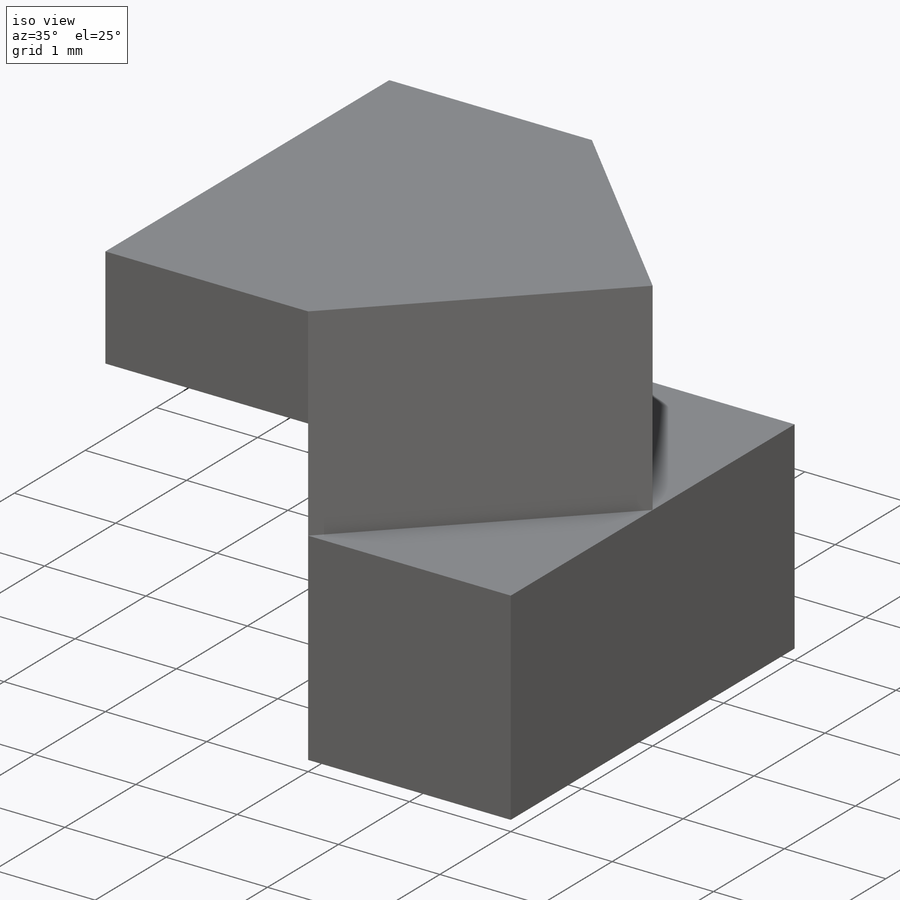
[diagram: iso view]
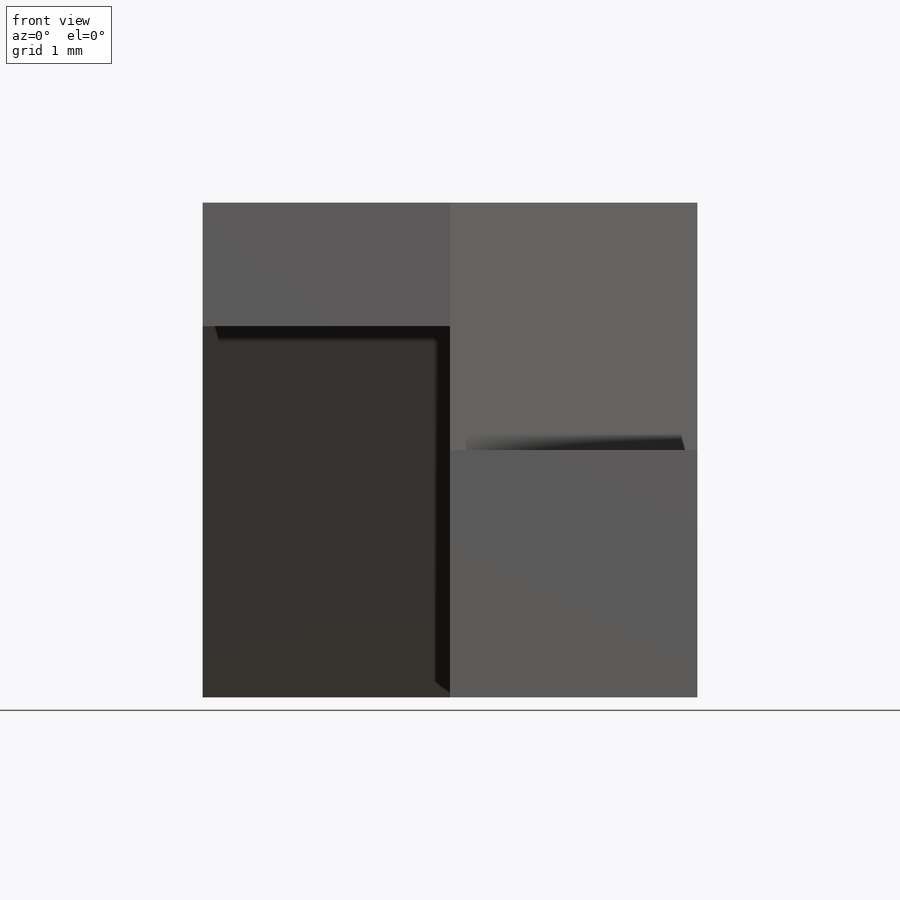
[diagram: front view]
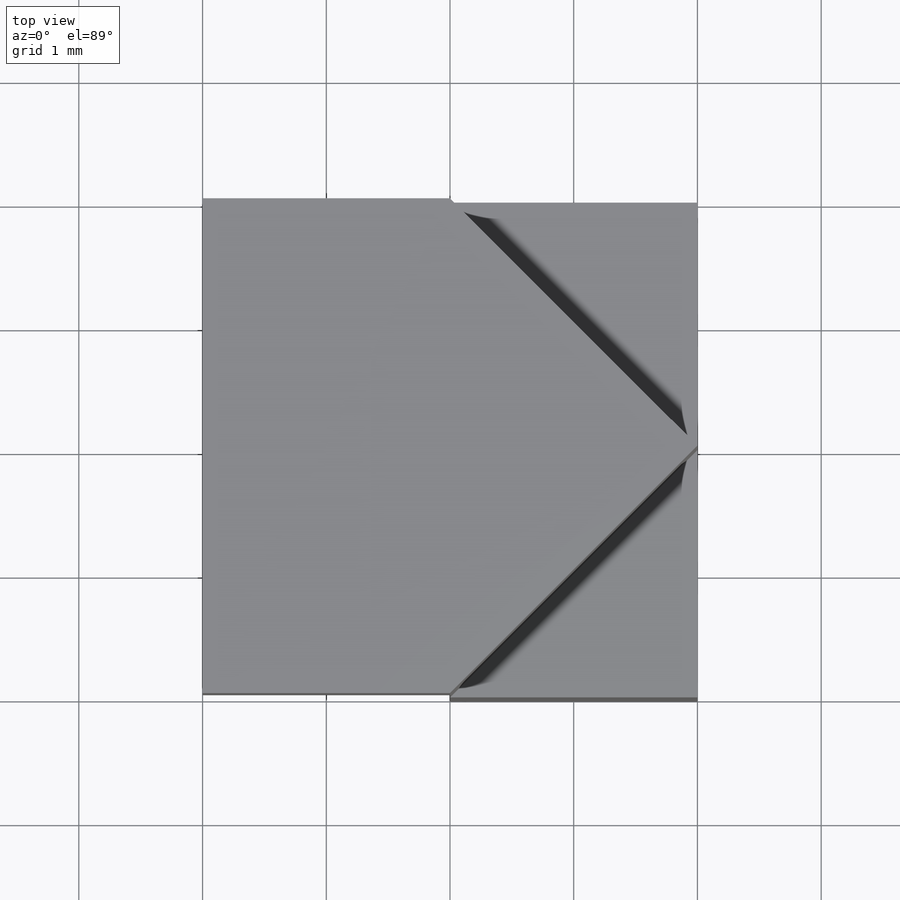
[diagram: top view]
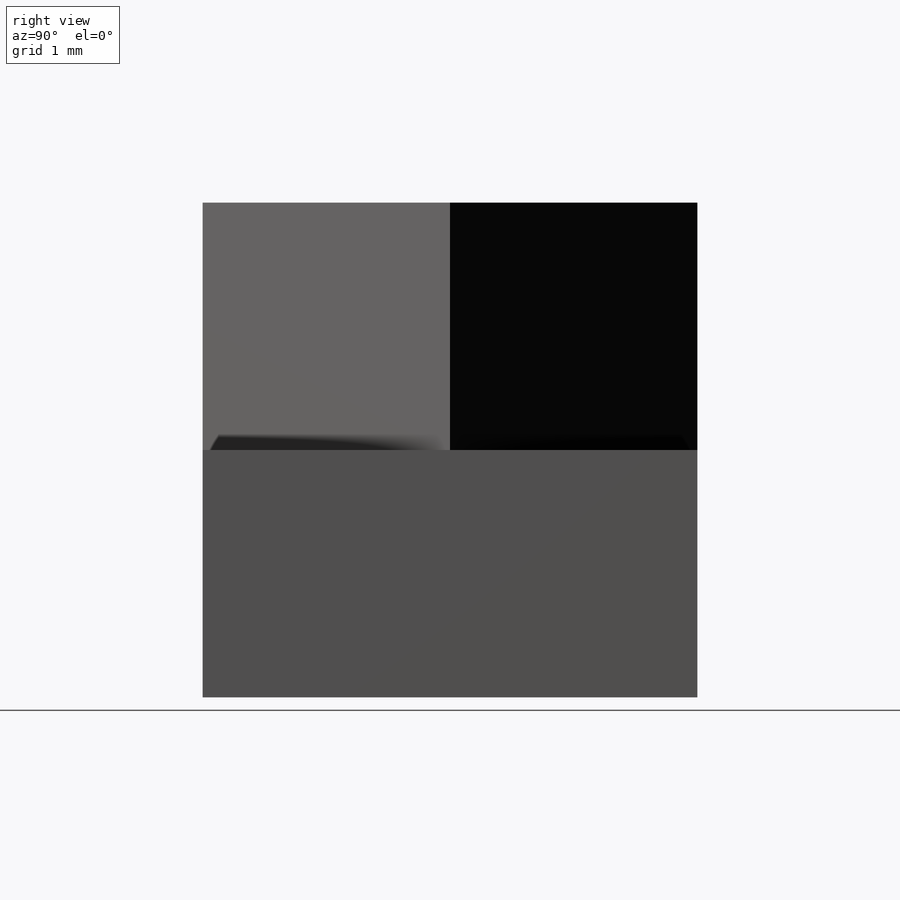
[diagram: right view]
SOLIDWORKS PART (.sldprt)
format: sldprt  version: not decoded by parser v0  size: 164,352 bytes
history: native  units: mm
features: sketch x5, cut_extrude x4, material x1, extrude x1 (+13 scaffold rows collapsed)
feature tree (24):
  scaffold x13  (default folders/planes/origin — collapsed)
  material  "Material <not specified>"
  sketch  "Sketch5"  dims[D1=4.0mm D2=4.0mm]
  extrude  "Boss-Extrude2"  Depth=4mm
  sketch  "Sketch7"  dims[D1=3.0mm]
  cut_extrude  "Cut-Extrude5"  Depth=2mm
  sketch  "Sketch11"
  cut_extrude  "Cut-Extrude8"  Depth=2mm
  sketch  "Sketch13"
  cut_extrude  "Cut-Extrude10"  Depth=2mm
  sketch  "Sketch14"
  cut_extrude  "Cut-Extrude13"  Depth=2mm
decode coverage: 7 of 10 modeling features carry decoded parameters
note: suppression state not decoded; provenance and decode notes live in map.json
